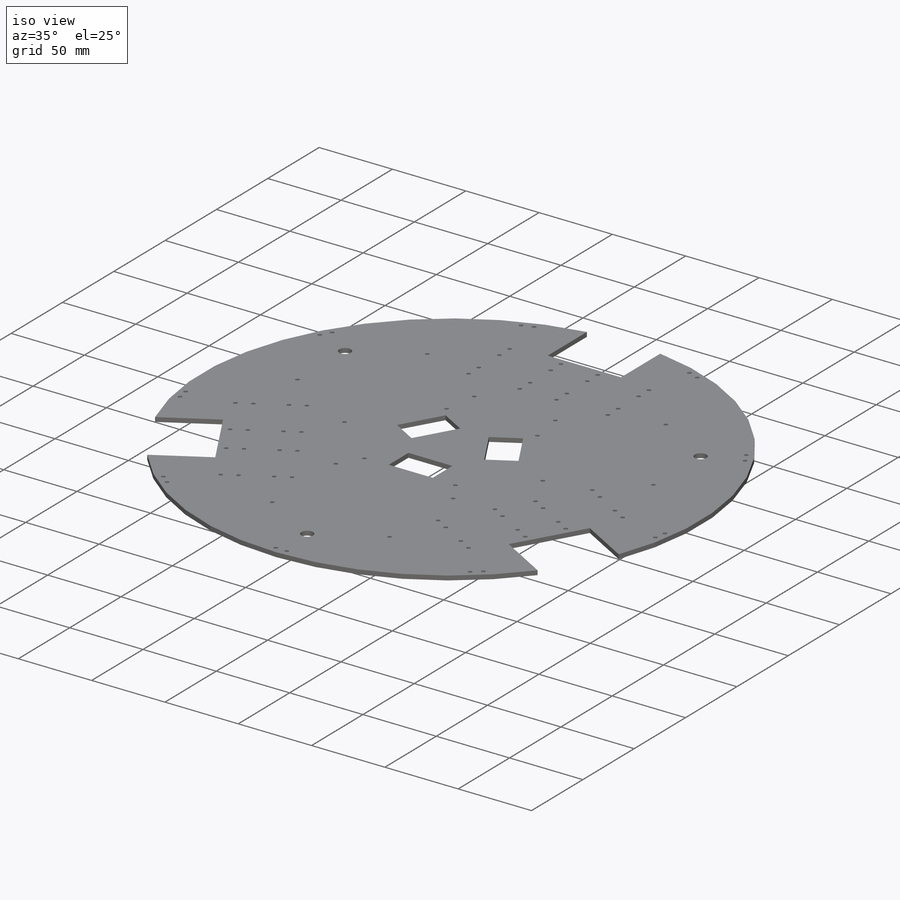
[diagram: iso view]
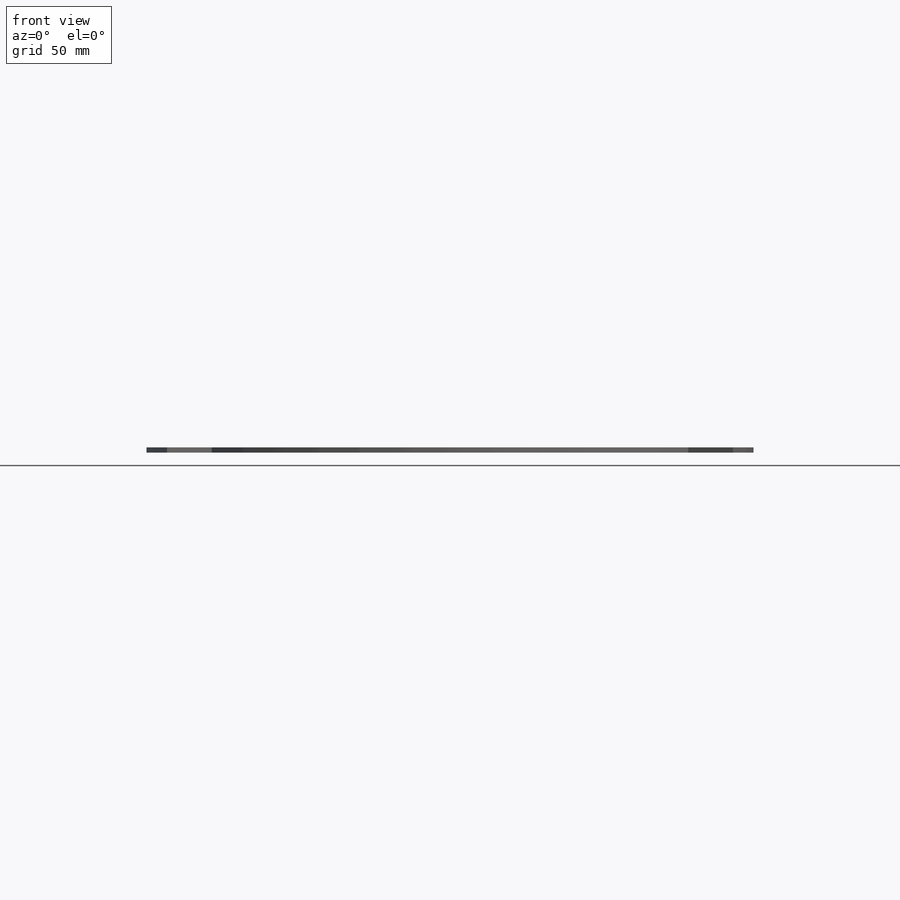
[diagram: front view]
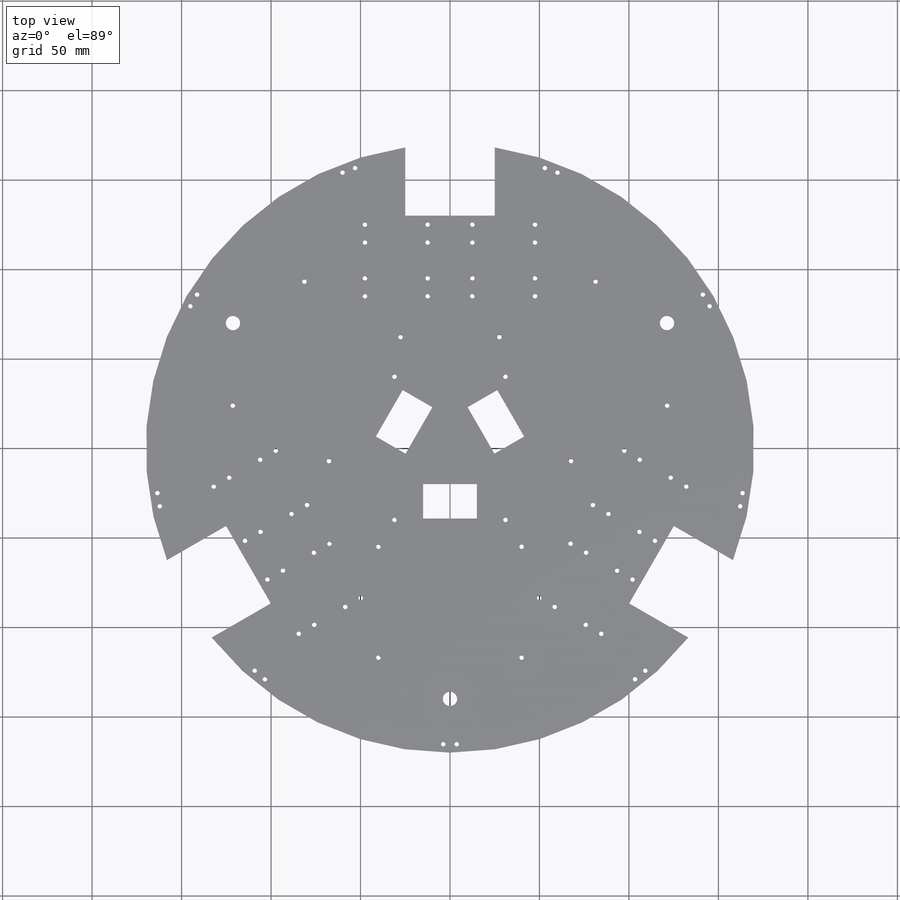
[diagram: top view]
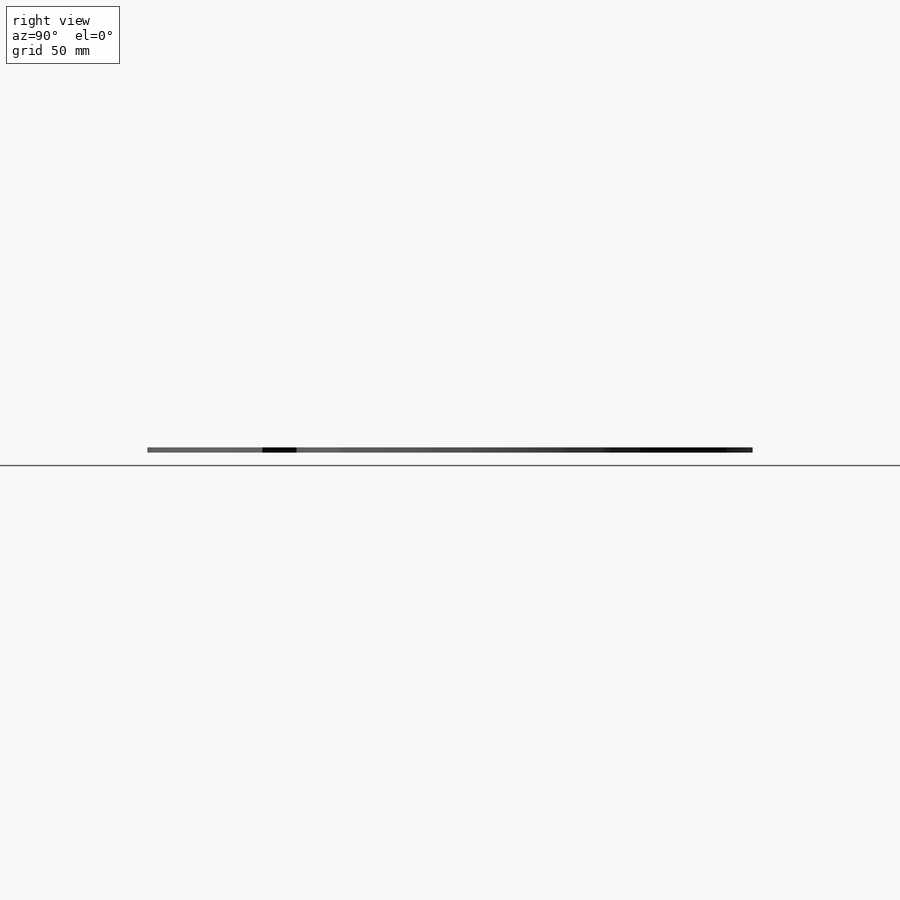
[diagram: right view]
SOLIDWORKS PART (.sldprt)
format: sldprt  version: not decoded by parser v0  size: 1,012,736 bytes
history: native  units: mm
features: thread x82, sketch x13, plane x3, cut_extrude x3, hole x2, material x1, extrude x1 + 5 further entries (+6 scaffold rows collapsed)
feature tree (116):
  scaffold x6  (default folders/planes/origin — collapsed)
  material  "1060 合金"
  "ｿﾘｯﾄﾞ ﾎﾞﾃﾞｨ"
  "ｻｰﾌｪｽ ﾎﾞﾃﾞｨ（複数）"
  plane  "VERT"
  plane  "HOR"
  plane  "CTR"
  "CS_DEF"
  "A_Y"
  "A_Z"
  sketch  "PNT_CG"
  sketch  "ｽｹｯﾁ1"  dims[D1=~50.107628mm]
  extrude  "ﾎﾞｽ - 押し出し1"  Depth=3mm
  sketch  "ｽｹｯﾁ2"  dims[c1.D1=170.0mm c2.D1=120.0deg c3.D1=170.0mm c4.D1=120.0deg c5.D1=170.0mm c6.D1=120.0deg c7.D1=170.0mm c8.D1=120.0deg c8.D2=170.0mm c9.D2=120.0deg c9.D3=130.0mm c9.D1=130.0mm]
  cut_extrude  "ｶｯﾄ - 押し出し1"  Depth=3mm
  sketch  "モータ取り付け金具 ねじ穴"  dims[c1.D3=~5.300513mm c1.D1=30.0mm c1.D2=30.0mm c2.D1=50.0mm c2.D2=110.0mm c3.D1=7.5mm c3.D2=5.0mm c4.D1=2.0 c4.D2=2.0 c4.D3=2.0 c4.D4=2.0 c4.D5=2.0 c4.D6=2.0]
  sketch  "ｽｹｯﾁ4"  dims[D1=~37.559497mm]
  cut_extrude  "ｶｯﾄ - 押し出し3"  Depth=3mm
  sketch  "ドーターボード ねじ穴"  dims[c1.D2=~2.872843mm c1.D1=90.0mm c2.D2=72.0mm c2.D1=170.0mm c3.D1=90.0deg c3.D2=90.0mm c4.D2=90.0deg c5.D2=5.0mm c5.D3=5.0mm c6.D2=90.0mm c7.D2=~90.001176deg c8.D2=90.0mm c9.D2=90.0deg c9.D3=72.0mm c9.D4=5.0mm c9.D5=5.0mm c9.D6=2.0 c9.D7=2.0 c9.D8=2.0]
  sketch  "基盤&モータ取り付け部"  dims[c1.D11=170.0mm c1.D14=~3.530579mm c1.D6=3.0mm c2.D11=3.0mm c2.D12=~163.634056mm c2.D1=30.0mm c2.D2=30.0mm c2.D3=50.0mm c3.D1=110.0mm c3.D2=50.0mm c3.D3=110.0mm c3.D4=50.0mm c3.D5=30.0mm c3.D6=30.0mm c4.D6=~89.920196deg c5.D6=50.0mm c5.D7=110.0mm c5.D5=5.0mm c5.D8=5.0mm c5.D9=5.0mm c5.D10=5.0mm c6.D5=90.0mm c6.D8=72.0mm c6.D1=90.0mm c6.D2=90.0mm c7.D1=45.0mm c7.D2=300.0mm c8.D2=~0.519455deg c9.D2=~89.483823mm c9.D1=90.0mm c10.D2=70.0mm c10.D6=140.0mm c10.D7=130.0mm c10.D10=90.0mm c10.D11=300.0mm c11.D11=22.5deg c12.D11=300.0mm c13.D11=22.5deg c14.D11=300.0mm c15.D11=18.0deg c16.D11=300.0mm c17.D11=40.0deg c18.D11=170.0mm c19.D11=40.0deg c19.D6=300.0mm c20.D6=20.0deg c20.D12=~168.566592mm c21.D12=20.0deg c21.D13=~130.020893mm c22.D13=20.0deg c22.D12=~167.417317mm c23.D12=~40.000002deg c23.D14=7.5mm c23.D6=15.0mm c23.D2=36.0mm c24.D2=90.0deg c25.D2=72.0mm c25.D11=90.0mm c25.D12=45.0mm c25.D13=5.0mm c25.D14=5.0mm c26.D2=90.0mm c26.D11=45.0mm c26.D15=3.0mm c26.D14=3.0mm c27.D15=72.0mm c27.D16=15.0mm c27.D17=25.0mm c27.D9=3.0 c27.D10=3.0]
  sketch  "タワー&タッチセンサ ねじ穴"  dims[c1.D3=3.0mm c1.D2=3.0mm c2.D3=3.0mm c2.D1=5.0mm c2.D2=300.0mm c3.D2=20.0deg c4.D2=~159.747746mm c5.D2=90.0deg c6.D2=3.75mm c6.D1=2.0 c7.D2=9.0]
  hole  "M3 ねじ穴2"  [1 undecoded]
  sketch  "3Dｽｹｯﾁ2"
  sketch  "ｽｹｯﾁ13"  dims[hole-wizard template sketch: 60 standard entries collapsed; hole parameters kept: c18.次ｻｰﾌｪｽまでのねじ下穴ﾄﾞﾘﾙの深さ=3.0mm]
  thread  "穴のねじ山19"  Diameter=3mm  [1 undecoded]
  thread  "穴のねじ山20"  Diameter=3mm  [1 undecoded]
  thread  "穴のねじ山21"  Diameter=3mm  [1 undecoded]
  thread  "穴のねじ山22"  Diameter=3mm  [1 undecoded]
  thread  "穴のねじ山23"  Diameter=3mm  [1 undecoded]
  thread  "穴のねじ山24"  Diameter=3mm  [1 undecoded]
  thread  "穴のねじ山25"  Diameter=3mm  [1 undecoded]
  thread  "穴のねじ山26"  Diameter=3mm  [1 undecoded]
  thread  "穴のねじ山27"  Diameter=3mm  [1 undecoded]
  thread  "穴のねじ山28"  Diameter=3mm  [1 undecoded]
  thread  "穴のねじ山29"  Diameter=3mm  [1 undecoded]
  thread  "穴のねじ山30"  Diameter=3mm  [1 undecoded]
  thread  "穴のねじ山31"  Diameter=3mm  [1 undecoded]
  thread  "穴のねじ山32"  Diameter=3mm  [1 undecoded]
  thread  "穴のねじ山33"  Diameter=3mm  [1 undecoded]
  thread  "穴のねじ山34"  Diameter=3mm  [1 undecoded]
  thread  "穴のねじ山35"  Diameter=3mm  [1 undecoded]
  thread  "穴のねじ山36"  Diameter=3mm  [1 undecoded]
  thread  "穴のねじ山37"  Diameter=3mm  [1 undecoded]
  thread  "穴のねじ山38"  Diameter=3mm  [1 undecoded]
  thread  "穴のねじ山39"  Diameter=3mm  [1 undecoded]
  thread  "穴のねじ山40"  Diameter=3mm  [1 undecoded]
  sketch  "ｽｹｯﾁ15"  dims[c1.D1=300.0mm c2.D1=90.0deg c3.D1=15.0mm c3.D2=30.0mm c4.D2=90.0deg c5.D2=15.0mm c5.D1=30.0mm c6.D2=60.0mm]
  cut_extrude  "ｶｯﾄ - 押し出し5"  Depth=10mm
  hole  "M3 ねじ穴12"  [1 undecoded]
  sketch  "3Dｽｹｯﾁ4"
  sketch  "ｽｹｯﾁ21"  dims[hole-wizard template sketch: 60 standard entries collapsed; hole parameters kept: c18.次ｻｰﾌｪｽまでのねじ下穴ﾄﾞﾘﾙの深さ=3.0mm]
  thread  "穴のねじ山41"  Diameter=3mm  [1 undecoded]
  thread  "穴のねじ山42"  Diameter=3mm  [1 undecoded]
  thread  "穴のねじ山43"  Diameter=3mm  [1 undecoded]
  thread  "穴のねじ山44"  Diameter=3mm  [1 undecoded]
  thread  "穴のねじ山45"  Diameter=3mm  [1 undecoded]
  thread  "穴のねじ山46"  Diameter=3mm  [1 undecoded]
  thread  "穴のねじ山47"  Diameter=3mm  [1 undecoded]
  thread  "穴のねじ山48"  Diameter=3mm  [1 undecoded]
  thread  "穴のねじ山49"  Diameter=3mm  [1 undecoded]
  thread  "穴のねじ山50"  Diameter=3mm  [1 undecoded]
  thread  "穴のねじ山51"  Diameter=3mm  [1 undecoded]
  thread  "穴のねじ山52"  Diameter=3mm  [1 undecoded]
  thread  "穴のねじ山53"  Diameter=3mm  [1 undecoded]
  thread  "穴のねじ山54"  Diameter=3mm  [1 undecoded]
  thread  "穴のねじ山55"  Diameter=3mm  [1 undecoded]
  thread  "穴のねじ山56"  Diameter=3mm  [1 undecoded]
  thread  "穴のねじ山57"  Diameter=3mm  [1 undecoded]
  thread  "穴のねじ山58"  Diameter=3mm  [1 undecoded]
  thread  "穴のねじ山59"  Diameter=3mm  [1 undecoded]
  thread  "穴のねじ山60"  Diameter=3mm  [1 undecoded]
  thread  "穴のねじ山61"  Diameter=3mm  [1 undecoded]
  thread  "穴のねじ山62"  Diameter=3mm  [1 undecoded]
  thread  "穴のねじ山63"  Diameter=3mm  [1 undecoded]
  thread  "穴のねじ山64"  Diameter=3mm  [1 undecoded]
  thread  "穴のねじ山65"  Diameter=3mm  [1 undecoded]
  thread  "穴のねじ山66"  Diameter=3mm  [1 undecoded]
  thread  "穴のねじ山67"  Diameter=3mm  [1 undecoded]
  thread  "穴のねじ山68"  Diameter=3mm  [1 undecoded]
  thread  "穴のねじ山69"  Diameter=3mm  [1 undecoded]
  thread  "穴のねじ山70"  Diameter=3mm  [1 undecoded]
  thread  "穴のねじ山71"  Diameter=3mm  [1 undecoded]
  thread  "穴のねじ山72"  Diameter=3mm  [1 undecoded]
  thread  "穴のねじ山73"  Diameter=3mm  [1 undecoded]
  thread  "穴のねじ山74"  Diameter=3mm  [1 undecoded]
  thread  "穴のねじ山75"  Diameter=3mm  [1 undecoded]
  thread  "穴のねじ山76"  Diameter=3mm  [1 undecoded]
  thread  "穴のねじ山77"  Diameter=3mm  [1 undecoded]
  thread  "穴のねじ山78"  Diameter=3mm  [1 undecoded]
  thread  "穴のねじ山79"  Diameter=3mm  [1 undecoded]
  thread  "穴のねじ山80"  Diameter=3mm  [1 undecoded]
  thread  "穴のねじ山81"  Diameter=3mm  [1 undecoded]
  thread  "穴のねじ山82"  Diameter=3mm  [1 undecoded]
  thread  "穴のねじ山83"  Diameter=3mm  [1 undecoded]
  thread  "穴のねじ山84"  Diameter=3mm  [1 undecoded]
  thread  "穴のねじ山85"  Diameter=3mm  [1 undecoded]
  thread  "穴のねじ山86"  Diameter=3mm  [1 undecoded]
  thread  "穴のねじ山87"  Diameter=3mm  [1 undecoded]
  thread  "穴のねじ山88"  Diameter=3mm  [1 undecoded]
  thread  "穴のねじ山89"  Diameter=3mm  [1 undecoded]
  thread  "穴のねじ山90"  Diameter=3mm  [1 undecoded]
  thread  "穴のねじ山91"  Diameter=3mm  [1 undecoded]
  thread  "穴のねじ山92"  Diameter=3mm  [1 undecoded]
  thread  "穴のねじ山93"  Diameter=3mm  [1 undecoded]
  thread  "穴のねじ山94"  Diameter=3mm  [1 undecoded]
  thread  "穴のねじ山95"  Diameter=3mm  [1 undecoded]
  thread  "穴のねじ山96"  Diameter=3mm  [1 undecoded]
  thread  "穴のねじ山97"  Diameter=3mm  [1 undecoded]
  thread  "穴のねじ山98"  Diameter=3mm  [1 undecoded]
  thread  "穴のねじ山99"  Diameter=3mm  [1 undecoded]
  thread  "穴のねじ山100"  Diameter=3mm  [1 undecoded]
decode coverage: 96 of 101 modeling features carry decoded parameters; 5 rows unclassified (native names shown)
note: ~ marks probable driven/reference dimensions
note: 84 parameter values undecoded
note: suppression state not decoded; provenance and decode notes live in map.json
